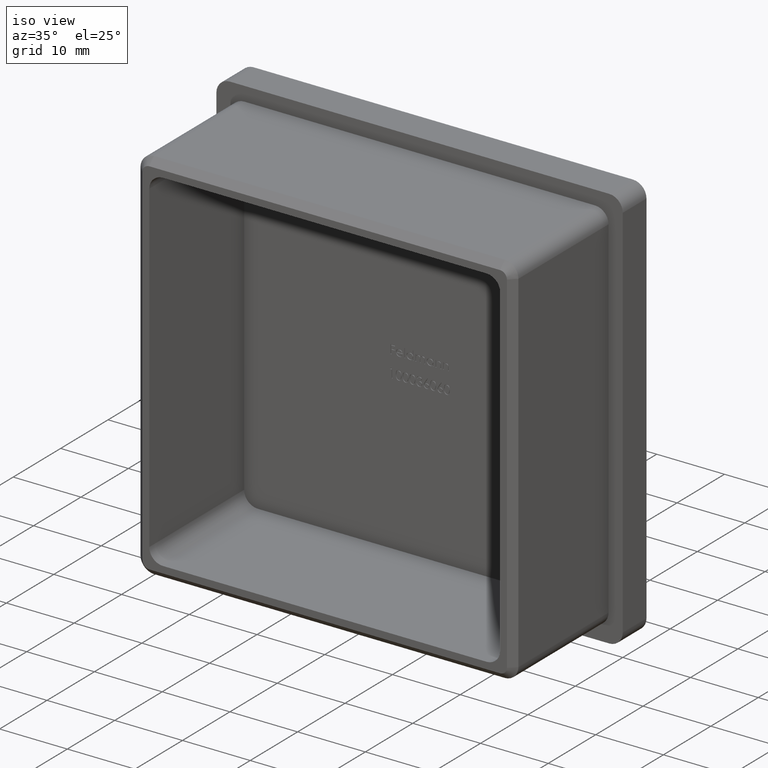
[diagram: clean part render]
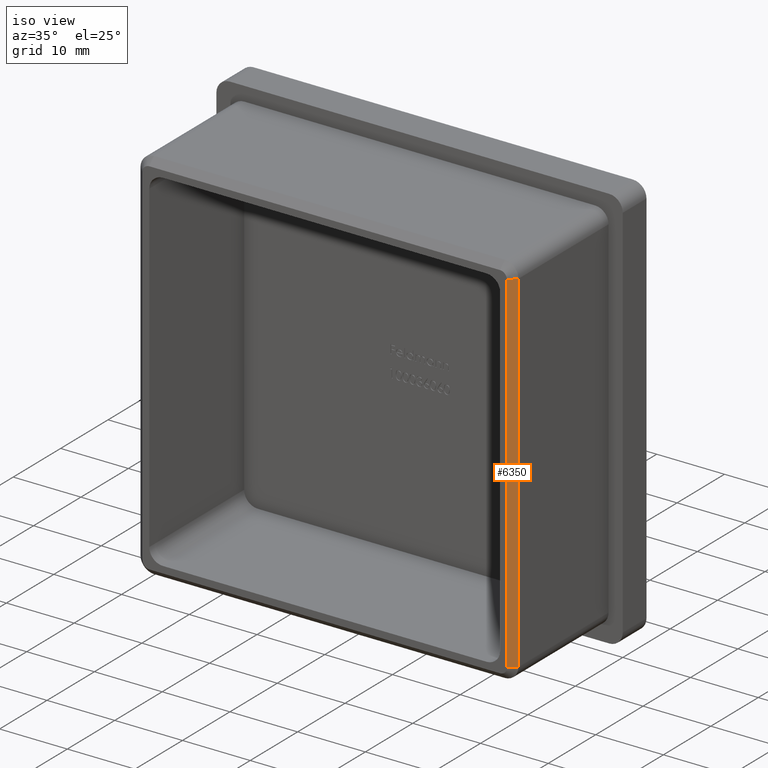
[diagram: same view with one face highlighted and labeled with its STEP entity id]
A machine part, iso view. The second image highlights one B-rep face of the part: STEP entity #6350.
In plain terms, the highlighted planar face has unit normal (0.7071, -0.7071, 0).
Its self-contained STEP definition (entity closure, byte-faithful):
#227 = EDGE_CURVE ( 'NONE', #1848, #12065, #14972, .T. ) ;
#893 = CARTESIAN_POINT ( 'NONE',  ( 27.90000000000000200, -19.00000000000000000, -25.89999999999999900 ) ) ;
#909 = VECTOR ( 'NONE', #11189, 1000.000000000000000 ) ;
#1298 = EDGE_CURVE ( 'NONE', #12759, #12065, #14759, .T. ) ;
#1704 = DIRECTION ( 'NONE',  ( 0.0000000000000000000, 0.0000000000000000000, -1.000000000000000000 ) ) ;
#1848 = VERTEX_POINT ( 'NONE', #8851 ) ;
#2163 = DIRECTION ( 'NONE',  ( 0.0000000000000000000, 0.0000000000000000000, -1.000000000000000000 ) ) ;
#2695 = CARTESIAN_POINT ( 'NONE',  ( 26.89999999999999900, -20.00000000000000000, 25.89999999999999900 ) ) ;
#2974 = LINE ( 'NONE', #6365, #909 ) ;
#3856 = VECTOR ( 'NONE', #2163, 1000.000000000000000 ) ;
#4191 = DIRECTION ( 'NONE',  ( 0.7071067811865475700, -0.7071067811865475700, 0.0000000000000000000 ) ) ;
#4264 = CARTESIAN_POINT ( 'NONE',  ( 26.89999999999999900, -20.00000000000000000, -25.89999999999999900 ) ) ;
#5485 = DIRECTION ( 'NONE',  ( -0.7071067811865474600, -0.7071067811865474600, 0.0000000000000000000 ) ) ;
#5632 = EDGE_LOOP ( 'NONE', ( #9400, #11382, #8244, #11895 ) ) ;
#6350 = ADVANCED_FACE ( 'NONE', ( #13606 ), #8853, .T. ) ;
#6365 = CARTESIAN_POINT ( 'NONE',  ( 26.89999999999999900, -20.00000000000000000, 25.89999999999999900 ) ) ;
#7546 = CARTESIAN_POINT ( 'NONE',  ( 26.89999999999999900, -20.00000000000000000, -25.89999999999999900 ) ) ;
#7577 = CARTESIAN_POINT ( 'NONE',  ( 26.89999999999999900, -20.00000000000000000, 0.0000000000000000000 ) ) ;
#7889 = EDGE_CURVE ( 'NONE', #1848, #13891, #14093, .T. ) ;
#8244 = ORIENTED_EDGE ( 'NONE', *, *, #7889, .T. ) ;
#8847 = EDGE_CURVE ( 'NONE', #12759, #13891, #2974, .T. ) ;
#8851 = CARTESIAN_POINT ( 'NONE',  ( 27.90000000000000200, -19.00000000000000000, 25.89999999999999900 ) ) ;
#8853 = PLANE ( 'NONE',  #12862 ) ;
#9400 = ORIENTED_EDGE ( 'NONE', *, *, #1298, .T. ) ;
#11189 = DIRECTION ( 'NONE',  ( 0.0000000000000000000, 0.0000000000000000000, 1.000000000000000000 ) ) ;
#11251 = VECTOR ( 'NONE', #5485, 1000.000000000000100 ) ;
#11382 = ORIENTED_EDGE ( 'NONE', *, *, #227, .F. ) ;
#11506 = CARTESIAN_POINT ( 'NONE',  ( 27.90000000000000200, -19.00000000000000000, -25.89999999999999900 ) ) ;
#11895 = ORIENTED_EDGE ( 'NONE', *, *, #8847, .F. ) ;
#12065 = VERTEX_POINT ( 'NONE', #893 ) ;
#12111 = DIRECTION ( 'NONE',  ( 0.7071067811865474600, 0.7071067811865474600, 0.0000000000000000000 ) ) ;
#12759 = VERTEX_POINT ( 'NONE', #4264 ) ;
#12862 = AXIS2_PLACEMENT_3D ( 'NONE', #7577, #4191, #1704 ) ;
#13606 = FACE_OUTER_BOUND ( 'NONE', #5632, .T. ) ;
#13771 = CARTESIAN_POINT ( 'NONE',  ( 27.90000000000000200, -19.00000000000000000, 25.89999999999999900 ) ) ;
#13891 = VERTEX_POINT ( 'NONE', #2695 ) ;
#14026 = VECTOR ( 'NONE', #12111, 1000.000000000000100 ) ;
#14093 = LINE ( 'NONE', #13771, #11251 ) ;
#14759 = LINE ( 'NONE', #7546, #14026 ) ;
#14972 = LINE ( 'NONE', #11506, #3856 ) ;